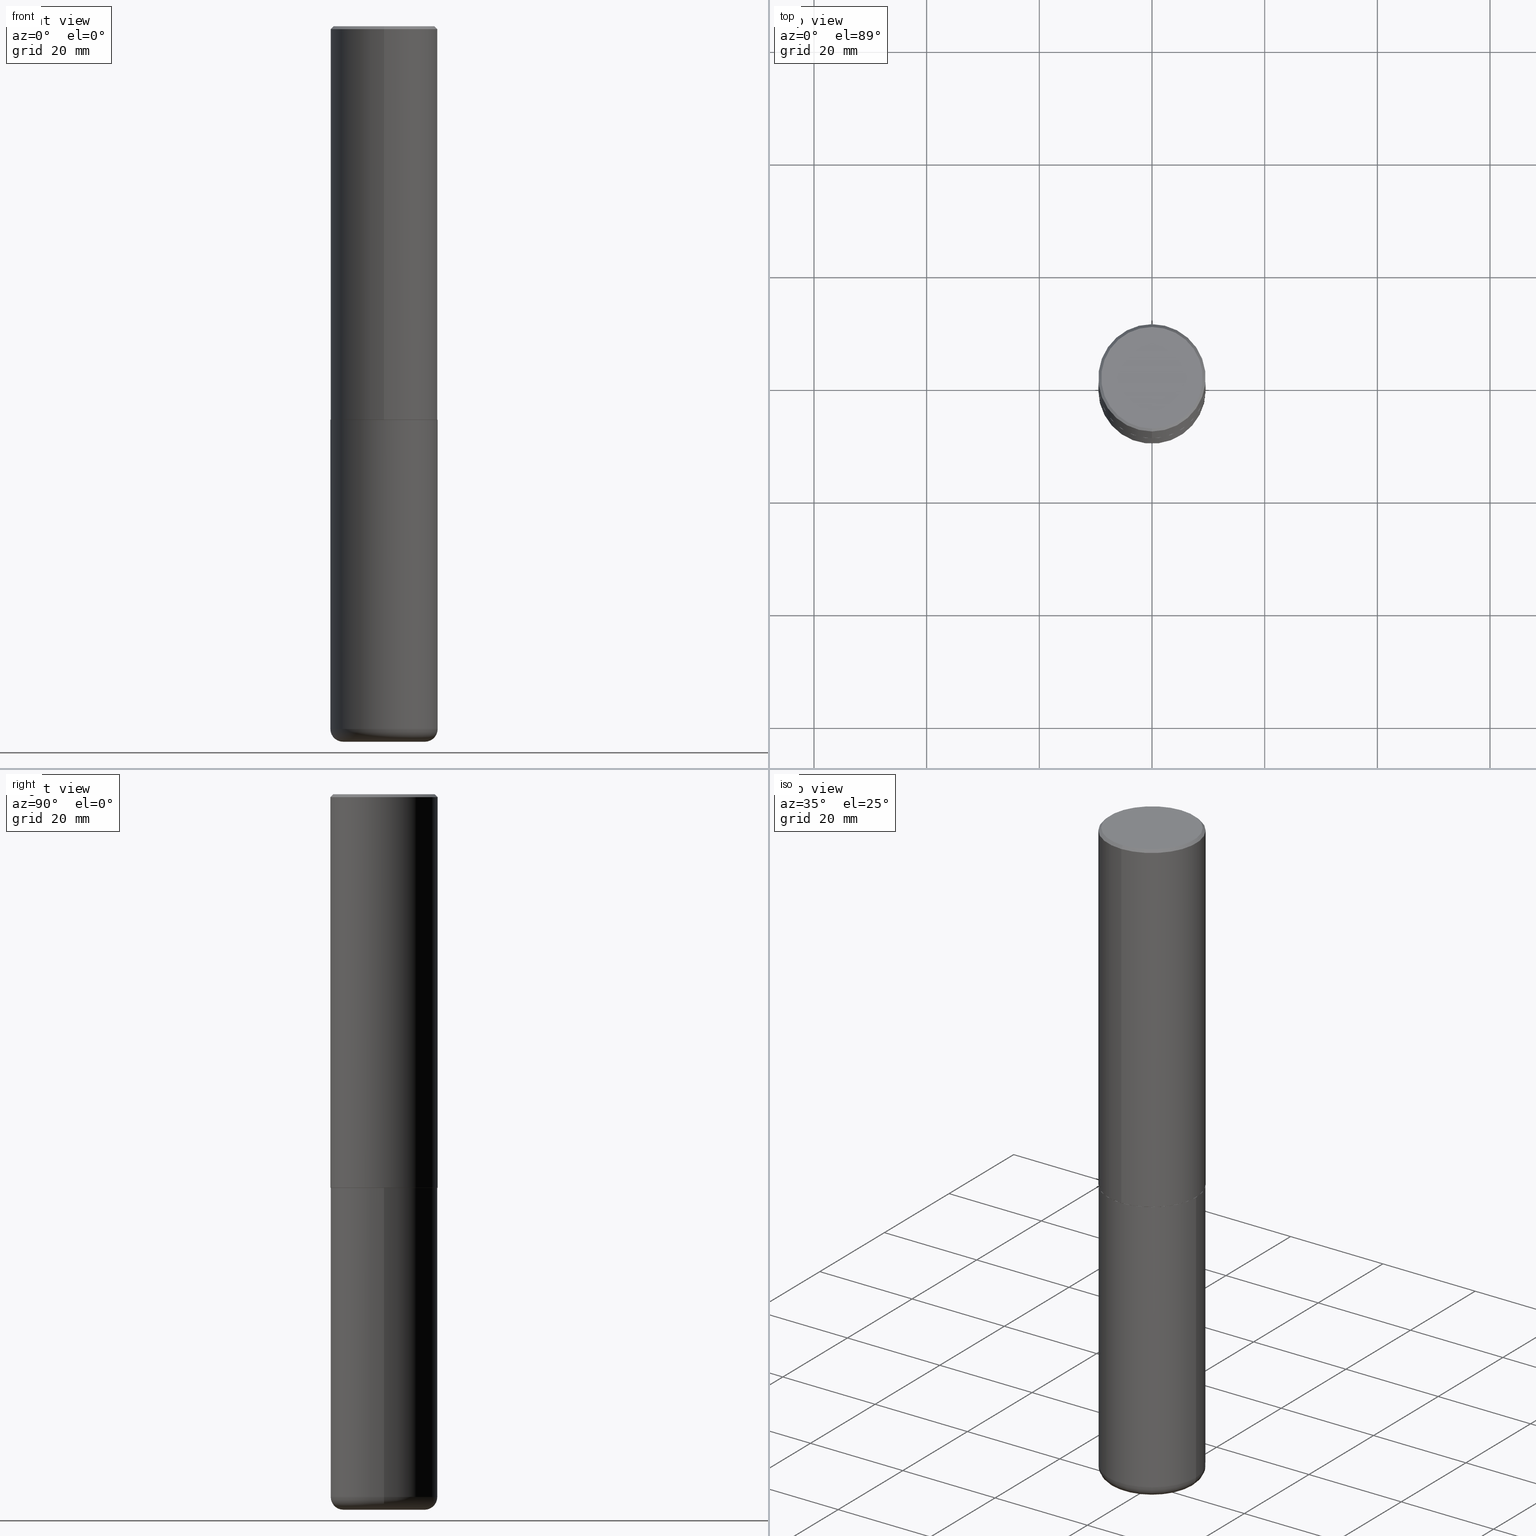
[diagram: canonical four-view strip — front | top / right | iso, engineering-drawing reading convention]
A machine part, canonical four-view strip (front | top / right | iso — engineering-drawing reading convention). The complete STEP part file that produces these views, byte-faithful:
ISO-10303-21;
HEADER;
FILE_DESCRIPTION (( 'STEP AP203' ),
    '1' );
FILE_NAME ('37660.STEP',
    '2024-03-02T07:19:38',
    ( '' ),
    ( '' ),
    'SwSTEP 2.0',
    'SolidWorks 2023',
    '' );
FILE_SCHEMA (( 'CONFIG_CONTROL_DESIGN' ));
ENDSEC;

DATA;
#1 = VERTEX_POINT ( 'NONE', #220 ) ;
#2 = CARTESIAN_POINT ( 'NONE',  ( -2.618611004132351594E-15, -0.3750000000000002220, 1.308998548422625521E-15 ) ) ;
#3 = CC_DESIGN_PERSON_AND_ORGANIZATION_ASSIGNMENT ( #376, #407, ( #402 ) ) ;
#4 = FACE_OUTER_BOUND ( 'NONE', #398, .T. ) ;
#5 = APPLICATION_PROTOCOL_DEFINITION ( 'international standard', 'config_control_design', 1994, #109 ) ;
#6 = ORIENTED_EDGE ( 'NONE', *, *, #190, .T. ) ;
#7 = ADVANCED_FACE ( 'NONE', ( #30 ), #162, .F. ) ;
#8 = EDGE_CURVE ( 'NONE', #271, #403, #415, .T. ) ;
#9 = CARTESIAN_POINT ( 'NONE',  ( 0.000000000000000000, 0.000000000000000000, 0.000000000000000000 ) ) ;
#10 = ORIENTED_EDGE ( 'NONE', *, *, #90, .T. ) ;
#11 = CONICAL_SURFACE ( 'NONE', #198, 0.3750000000000000555, 0.7853981633974465026 ) ;
#12 = SECURITY_CLASSIFICATION ( '', '', #222 ) ;
#13 = DIRECTION ( 'NONE',  ( -6.982962677686265922E-15, -1.000000000000000000, 3.490662795793665557E-15 ) ) ;
#14 = ORIENTED_EDGE ( 'NONE', *, *, #201, .T. ) ;
#15 = ORIENTED_EDGE ( 'NONE', *, *, #394, .T. ) ;
#16 = APPROVAL_DATE_TIME ( #56, #104 ) ;
#17 = VERTEX_POINT ( 'NONE', #281 ) ;
#18 = TOROIDAL_SURFACE ( 'NONE', #256, 0.2850000000000000311, 0.08999999999999989952 ) ;
#19 = AXIS2_PLACEMENT_3D ( 'NONE', #9, #208, #390 ) ;
#20 = ORIENTED_EDGE ( 'NONE', *, *, #327, .F. ) ;
#21 = CALENDAR_DATE ( 2024, 2, 3 ) ;
#22 = CARTESIAN_POINT ( 'NONE',  ( 1.222734403092568523E-28, -1.745740669421572989E-14, -5.000000000000000000 ) ) ;
#23 = APPLICATION_CONTEXT ( 'configuration controlled 3d designs of mechanical parts and assemblies' ) ;
#24 = CC_DESIGN_PERSON_AND_ORGANIZATION_ASSIGNMENT ( #130, #25, ( #183 ) ) ;
#25 = PERSON_AND_ORGANIZATION_ROLE ( 'creator' ) ;
#26 = CARTESIAN_POINT ( 'NONE',  ( 4.892080783483214581E-31, -6.981325591587361238E-17, -0.02000000000000008715 ) ) ;
#27 = AXIS2_PLACEMENT_3D ( 'NONE', #235, #206, #237 ) ;
#28 = AXIS2_PLACEMENT_3D ( 'NONE', #249, #95, #223 ) ;
#29 = CARTESIAN_POINT ( 'NONE',  ( 0.000000000000000000, 0.000000000000000000, 0.000000000000000000 ) ) ;
#30 = FACE_OUTER_BOUND ( 'NONE', #115, .T. ) ;
#31 = ADVANCED_FACE ( 'NONE', ( #278 ), #195, .F. ) ;
#32 = DIRECTION ( 'NONE',  ( -2.445468806185136597E-29, 3.491481338843145583E-15, 1.000000000000000000 ) ) ;
#33 = VERTEX_POINT ( 'NONE', #286 ) ;
#34 = CIRCLE ( 'NONE', #35, 0.3750000000000000555 ) ;
#35 = AXIS2_PLACEMENT_3D ( 'NONE', #135, #377, #129 ) ;
#36 = DIRECTION ( 'NONE',  ( -2.446040391741596045E-29, 3.490662795793665557E-15, 1.000000000000000000 ) ) ;
#37 = APPROVAL_PERSON_ORGANIZATION ( #274, #409, #136 ) ;
#38 = CARTESIAN_POINT ( 'NONE',  ( -2.611628041454596160E-15, -0.3740000000000096581, -2.749999999999998668 ) ) ;
#39 = ORIENTED_EDGE ( 'NONE', *, *, #263, .F. ) ;
#40 = CC_DESIGN_PERSON_AND_ORGANIZATION_ASSIGNMENT ( #63, #67, ( #402 ) ) ;
#41 = FACE_OUTER_BOUND ( 'NONE', #269, .T. ) ;
#42 = CARTESIAN_POINT ( 'NONE',  ( -0.2850000000000000311, -1.495549900595945556E-14, -5.000000000000000000 ) ) ;
#43 = CLOSED_SHELL ( 'NONE', ( #383, #141, #212, #196, #142, #302, #254, #31 ) ) ;
#44 = AXIS2_PLACEMENT_3D ( 'NONE', #29, #318, #375 ) ;
#45 = APPROVAL_PERSON_ORGANIZATION ( #125, #168, #227 ) ;
#46 = PRODUCT_RELATED_PRODUCT_CATEGORY ( 'detail', '', ( #204 ) ) ;
#47 = ORIENTED_EDGE ( 'NONE', *, *, #236, .F. ) ;
#48 =( CONVERSION_BASED_UNIT ( 'INCH', #298 ) LENGTH_UNIT ( ) NAMED_UNIT ( #71 ) );
#49 = ORIENTED_EDGE ( 'NONE', *, *, #310, .T. ) ;
#50 = CARTESIAN_POINT ( 'NONE',  ( -1.141397163745304909E-45, 1.628849886601155835E-31, 4.666305460853910467E-17 ) ) ;
#51 = EDGE_LOOP ( 'NONE', ( #88, #53 ) ) ;
#52 = CIRCLE ( 'NONE', #351, 0.3749999999999999445 ) ;
#53 = ORIENTED_EDGE ( 'NONE', *, *, #172, .F. ) ;
#54 = CARTESIAN_POINT ( 'NONE',  ( 0.2850000000000000311, -1.913331773686043011E-14, -4.910000000000000142 ) ) ;
#55 = EDGE_LOOP ( 'NONE', ( #213, #15, #49, #119 ) ) ;
#56 = DATE_AND_TIME ( #94, #85 ) ;
#57 = CARTESIAN_POINT ( 'NONE',  ( 0.000000000000000000, 0.000000000000000000, 0.000000000000000000 ) ) ;
#58 = CIRCLE ( 'NONE', #330, 0.3750000000000003886 ) ;
#59 = ORGANIZATION ( 'UNSPECIFIED', 'UNSPECIFIED', '' ) ;
#60 = EDGE_CURVE ( 'NONE', #84, #17, #193, .T. ) ;
#61 = DIRECTION ( 'NONE',  ( 6.982962677686265922E-15, 1.000000000000000000, -3.490662795793665557E-15 ) ) ;
#62 = EDGE_CURVE ( 'NONE', #368, #17, #34, .T. ) ;
#63 = PERSON_AND_ORGANIZATION ( #315, #59 ) ;
#64 = DIRECTION ( 'NONE',  ( -2.445468806185136597E-29, 3.491481338843145583E-15, 1.000000000000000000 ) ) ;
#65 = DIRECTION ( 'NONE',  ( -6.982962677686265922E-15, -1.000000000000000000, 3.494488891895536035E-15 ) ) ;
#66 = AXIS2_PLACEMENT_3D ( 'NONE', #405, #412, #65 ) ;
#67 = PERSON_AND_ORGANIZATION_ROLE ( 'creator' ) ;
#68 = CYLINDRICAL_SURFACE ( 'NONE', #416, 0.3750000000000002220 ) ;
#69 = DIRECTION ( 'NONE',  ( 2.438088387897960049E-29, -3.491481338843145188E-15, -1.000000000000000000 ) ) ;
#70 = CARTESIAN_POINT ( 'NONE',  ( 4.892080783483214581E-31, -6.981325591587361238E-17, -0.02000000000000008715 ) ) ;
#71 = DIMENSIONAL_EXPONENTS ( 1.000000000000000000, 0.000000000000000000, 0.000000000000000000, 0.000000000000000000, 0.000000000000000000, 0.000000000000000000, 0.000000000000000000 ) ;
#72 = CIRCLE ( 'NONE', #408, 0.3749999999999999445 ) ;
#73 = DIRECTION ( 'NONE',  ( 6.982962677686265922E-15, 1.000000000000000000, -3.494488891895536035E-15 ) ) ;
#74 = DIRECTION ( 'NONE',  ( 1.000000000000000000, -6.982962677686269077E-15, 4.883557194083113462E-29 ) ) ;
#75 = FACE_OUTER_BOUND ( 'NONE', #51, .T. ) ;
#76 = EDGE_CURVE ( 'NONE', #403, #271, #93, .T. ) ;
#77 = DIRECTION ( 'NONE',  ( -6.982962677686266711E-15, -1.000000000000000000, 2.921762560068730595E-15 ) ) ;
#78 = CIRCLE ( 'NONE', #307, 0.08999999999999992728 ) ;
#79 = ORIENTED_EDGE ( 'NONE', *, *, #291, .T. ) ;
#80 = DIRECTION ( 'NONE',  ( 1.000000000000000000, -6.982962677686273810E-15, 0.000000000000000000 ) ) ;
#81 = ORIENTED_EDGE ( 'NONE', *, *, #291, .F. ) ;
#82 = EDGE_LOOP ( 'NONE', ( #20, #163, #340, #158 ) ) ;
#83 = CARTESIAN_POINT ( 'NONE',  ( 6.726611077289389265E-29, -9.599322688432580971E-15, -2.750000000000000000 ) ) ;
#84 = VERTEX_POINT ( 'NONE', #170 ) ;
#85 = LOCAL_TIME ( 2, 19, 38.00000000000000000, #167 ) ;
#86 = EDGE_CURVE ( 'NONE', #214, #271, #312, .T. ) ;
#87 =( NAMED_UNIT ( * ) PLANE_ANGLE_UNIT ( ) SI_UNIT ( $, .RADIAN. ) );
#88 = ORIENTED_EDGE ( 'NONE', *, *, #90, .F. ) ;
#89 = CARTESIAN_POINT ( 'NONE',  ( 2.664535259100376880E-15, 0.3750000000000002220, -1.308998548422625521E-15 ) ) ;
#90 = EDGE_CURVE ( 'NONE', #186, #218, #147, .T. ) ;
#91 = CALENDAR_DATE ( 2024, 2, 3 ) ;
#92 = ORIENTED_EDGE ( 'NONE', *, *, #337, .F. ) ;
#93 = CIRCLE ( 'NONE', #66, 0.3750000000000000555 ) ;
#94 = CALENDAR_DATE ( 2024, 2, 3 ) ;
#95 = DIRECTION ( 'NONE',  ( -2.446040391741596606E-29, 3.490662795793665557E-15, 1.000000000000000000 ) ) ;
#96 = COORDINATED_UNIVERSAL_TIME_OFFSET ( 5, 0, .BEHIND. ) ;
#97 = ORIENTED_EDGE ( 'NONE', *, *, #263, .T. ) ;
#98 = DIRECTION ( 'NONE',  ( 4.937700262164538576E-15, 0.7071067811865437980, -0.7071067811865512365 ) ) ;
#99 = AXIS2_PLACEMENT_3D ( 'NONE', #22, #197, #228 ) ;
#100 = AXIS2_PLACEMENT_3D ( 'NONE', #83, #399, #77 ) ;
#101 = DIRECTION ( 'NONE',  ( 6.982962677686265922E-15, 1.000000000000000000, -3.494488891895536035E-15 ) ) ;
#102 = PLANE ( 'NONE',  #261 ) ;
#103 = DIRECTION ( 'NONE',  ( -2.445468806185136597E-29, 3.491481338843145583E-15, 1.000000000000000000 ) ) ;
#104 = APPROVAL ( #184, 'UNSPECIFIED' ) ;
#105 = CIRCLE ( 'NONE', #366, 0.2850000000000000311 ) ;
#106 = CARTESIAN_POINT ( 'NONE',  ( 1.222734403092568523E-28, -1.745740669421572989E-14, -5.000000000000000000 ) ) ;
#107 = DIRECTION ( 'NONE',  ( -6.982962677686266711E-15, -1.000000000000000000, 2.921762560068730595E-15 ) ) ;
#108 = EDGE_CURVE ( 'NONE', #123, #214, #319, .T. ) ;
#109 = APPLICATION_CONTEXT ( 'configuration controlled 3d designs of mechanical parts and assemblies' ) ;
#110 = CARTESIAN_POINT ( 'NONE',  ( -0.3749999999999999445, 2.664535259100375303E-15, -1.844600658845589318E-29 ) ) ;
#111 = MANIFOLD_SOLID_BREP ( 'Body-Move/Copy2[2]', #43 ) ;
#112 = CARTESIAN_POINT ( 'NONE',  ( -2.572686749164323547E-15, -0.3750000000000001110, -0.01999999999999877570 ) ) ;
#113 = AXIS2_PLACEMENT_3D ( 'NONE', #138, #253, #61 ) ;
#114 = CONICAL_SURFACE ( 'NONE', #338, 0.3739999999999999991, 0.7853981633977213939 ) ;
#115 = EDGE_LOOP ( 'NONE', ( #411, #159 ) ) ;
#116 = LOCAL_TIME ( 2, 19, 38.00000000000000000, #225 ) ;
#117 = MANIFOLD_SOLID_BREP ( 'Body-Move/Copy2[1]', #273 ) ;
#118 = APPLICATION_PROTOCOL_DEFINITION ( 'international standard', 'config_control_design', 1994, #23 ) ;
#119 = ORIENTED_EDGE ( 'NONE', *, *, #8, .F. ) ;
#120 = DIRECTION ( 'NONE',  ( -4.851104656540954809E-15, -0.7071067811865486830, -0.7071067811865463515 ) ) ;
#121 = ADVANCED_FACE ( 'NONE', ( #131 ), #219, .T. ) ;
#122 = ORIENTED_EDGE ( 'NONE', *, *, #172, .T. ) ;
#123 = VERTEX_POINT ( 'NONE', #285 ) ;
#124 = VECTOR ( 'NONE', #200, 39.37007874015748143 ) ;
#125 = PERSON_AND_ORGANIZATION ( #315, #59 ) ;
#126 = ORIENTED_EDGE ( 'NONE', *, *, #323, .T. ) ;
#127 = EDGE_CURVE ( 'NONE', #241, #271, #137, .T. ) ;
#128 = APPROVAL_DATE_TIME ( #374, #409 ) ;
#129 = DIRECTION ( 'NONE',  ( 1.000000000000000000, -6.982962677686266711E-15, 0.000000000000000000 ) ) ;
#130 = PERSON_AND_ORGANIZATION ( #315, #59 ) ;
#131 = FACE_OUTER_BOUND ( 'NONE', #304, .T. ) ;
#132 = CONICAL_SURFACE ( 'NONE', #185, 0.3750000000000000555, 0.7853981633974465026 ) ;
#133 = APPROVAL_PERSON_ORGANIZATION ( #149, #104, #264 ) ;
#134 = PERSON_AND_ORGANIZATION ( #315, #59 ) ;
#135 = CARTESIAN_POINT ( 'NONE',  ( 6.725039217009124520E-29, -9.601573681818649859E-15, -2.750000000000000000 ) ) ;
#136 = APPROVAL_ROLE ( '' ) ;
#137 = LINE ( 'NONE', #380, #234 ) ;
#138 = CARTESIAN_POINT ( 'NONE',  ( 2.478951750578624209E-15, 0.3549999999999999822, -1.215853765202481601E-15 ) ) ;
#139 = CIRCLE ( 'NONE', #329, 0.3750000000000000555 ) ;
#140 = DIRECTION ( 'NONE',  ( -2.446040391741596606E-29, 3.490662795793665557E-15, 1.000000000000000000 ) ) ;
#141 = ADVANCED_FACE ( 'NONE', ( #352 ), #68, .T. ) ;
#142 = ADVANCED_FACE ( 'NONE', ( #247 ), #283, .T. ) ;
#143 = DIRECTION ( 'NONE',  ( -6.982962677686266711E-15, -1.000000000000000000, 2.921762560068730595E-15 ) ) ;
#144 = PRODUCT_DEFINITION_SHAPE ( 'NONE', 'NONE',  #183 ) ;
#145 = CARTESIAN_POINT ( 'NONE',  ( 1.200725183836902132E-28, -1.714317337371984662E-14, -4.910000000000000142 ) ) ;
#146 = EDGE_LOOP ( 'NONE', ( #92, #239, #297, #364 ) ) ;
#147 = CIRCLE ( 'NONE', #99, 0.2850000000000000311 ) ;
#148 = DIRECTION ( 'NONE',  ( -2.446040391741596606E-29, 3.490662795793665557E-15, 1.000000000000000000 ) ) ;
#149 = PERSON_AND_ORGANIZATION ( #315, #59 ) ;
#150 = ORIENTED_EDGE ( 'NONE', *, *, #310, .F. ) ;
#151 = LINE ( 'NONE', #110, #160 ) ;
#152 = VECTOR ( 'NONE', #251, 39.37007874015748143 ) ;
#153 = ORIENTED_EDGE ( 'NONE', *, *, #108, .F. ) ;
#154 = CC_DESIGN_DATE_AND_TIME_ASSIGNMENT ( #350, #252, ( #183 ) ) ;
#155 = DIRECTION ( 'NONE',  ( -2.445468806185136597E-29, 3.491481338843145583E-15, 1.000000000000000000 ) ) ;
#156 = ORIENTED_EDGE ( 'NONE', *, *, #337, .T. ) ;
#157 = CARTESIAN_POINT ( 'NONE',  ( 1.200725183836902132E-28, -1.714317337371984662E-14, -4.910000000000000142 ) ) ;
#158 = ORIENTED_EDGE ( 'NONE', *, *, #62, .F. ) ;
#159 = ORIENTED_EDGE ( 'NONE', *, *, #62, .T. ) ;
#160 = VECTOR ( 'NONE', #361, 39.37007874015748143 ) ;
#161 = EDGE_CURVE ( 'NONE', #17, #368, #139, .T. ) ;
#162 = PLANE ( 'NONE',  #173 ) ;
#163 = ORIENTED_EDGE ( 'NONE', *, *, #279, .T. ) ;
#164 = CARTESIAN_POINT ( 'NONE',  ( 2.657429831742841742E-15, 0.3739999999999903957, -2.750000000000000888 ) ) ;
#165 = AXIS2_PLACEMENT_3D ( 'NONE', #233, #140, #293 ) ;
#166 = CC_DESIGN_APPROVAL ( #409, ( #402 ) ) ;
#167 = COORDINATED_UNIVERSAL_TIME_OFFSET ( 5, 0, .BEHIND. ) ;
#168 = APPROVAL ( #280, 'UNSPECIFIED' ) ;
#169 = CARTESIAN_POINT ( 'NONE',  ( 6.725039217009124520E-29, -9.601573681818649859E-15, -2.750000000000000000 ) ) ;
#170 = CARTESIAN_POINT ( 'NONE',  ( 0.3749999999999999445, -1.976178437785219664E-14, -4.910000000000000142 ) ) ;
#171 = FACE_OUTER_BOUND ( 'NONE', #146, .T. ) ;
#172 = EDGE_CURVE ( 'NONE', #218, #186, #105, .T. ) ;
#173 = AXIS2_PLACEMENT_3D ( 'NONE', #169, #371, #404 ) ;
#174 = DIRECTION ( 'NONE',  ( -6.982962677686265922E-15, -1.000000000000000000, 3.490662795793665557E-15 ) ) ;
#175 = FACE_OUTER_BOUND ( 'NONE', #396, .T. ) ;
#176 = LINE ( 'NONE', #2, #387 ) ;
#177 = TOROIDAL_SURFACE ( 'NONE', #284, 0.2850000000000000311, 0.08999999999999989952 ) ;
#178 = CARTESIAN_POINT ( 'NONE',  ( 4.892080783483214581E-31, -6.981325591587361238E-17, -0.02000000000000008715 ) ) ;
#179 = PERSON_AND_ORGANIZATION ( #315, #59 ) ;
#180 = VERTEX_POINT ( 'NONE', #384 ) ;
#181 = LINE ( 'NONE', #112, #362 ) ;
#182 = ORIENTED_EDGE ( 'NONE', *, *, #8, .T. ) ;
#183 = PRODUCT_DEFINITION ( 'UNKNOWN', '', #402, #287 ) ;
#184 = APPROVAL_STATUS ( 'not_yet_approved' ) ;
#185 = AXIS2_PLACEMENT_3D ( 'NONE', #178, #357, #101 ) ;
#186 = VERTEX_POINT ( 'NONE', #355 ) ;
#187 = LOCAL_TIME ( 2, 19, 38.00000000000000000, #311 ) ;
#188 = ORIENTED_EDGE ( 'NONE', *, *, #60, .F. ) ;
#189 = CARTESIAN_POINT ( 'NONE',  ( 6.724165036897648492E-29, -9.595832025636787455E-15, -2.749000000000000110 ) ) ;
#190 = EDGE_CURVE ( 'NONE', #1, #123, #250, .T. ) ;
#191 = ORIENTED_EDGE ( 'NONE', *, *, #248, .T. ) ;
#192 = DIRECTION ( 'NONE',  ( -2.446040391741596606E-29, 3.490662795793665557E-15, 1.000000000000000000 ) ) ;
#193 = LINE ( 'NONE', #199, #392 ) ;
#194 = CALENDAR_DATE ( 2024, 2, 3 ) ;
#195 = PLANE ( 'NONE',  #113 ) ;
#196 = ADVANCED_FACE ( 'NONE', ( #41 ), #132, .T. ) ;
#197 = DIRECTION ( 'NONE',  ( -2.445468806185136597E-29, 3.491481338843145583E-15, 1.000000000000000000 ) ) ;
#198 = AXIS2_PLACEMENT_3D ( 'NONE', #70, #326, #73 ) ;
#199 = CARTESIAN_POINT ( 'NONE',  ( 0.3749999999999999445, -2.618611004132349622E-15, 1.828566290923475642E-29 ) ) ;
#200 = DIRECTION ( 'NONE',  ( -4.937700262165896205E-15, -0.7071067811867381980, 0.7071067811863568364 ) ) ;
#201 = EDGE_CURVE ( 'NONE', #218, #301, #300, .T. ) ;
#202 = DIRECTION ( 'NONE',  ( -6.982962677686265922E-15, -1.000000000000000000, 2.913971193241877611E-15 ) ) ;
#203 = DIRECTION ( 'NONE',  ( -2.446040391741596606E-29, 3.490662795793665557E-15, 1.000000000000000000 ) ) ;
#204 = PRODUCT ( '37660', '37660', '', ( #395 ) ) ;
#205 = LINE ( 'NONE', #38, #124 ) ;
#206 = DIRECTION ( 'NONE',  ( 7.105427357601001859E-15, 1.000000000000000000, -3.491481338843145583E-15 ) ) ;
#207 = AXIS2_PLACEMENT_3D ( 'NONE', #50, #240, #13 ) ;
#208 = DIRECTION ( 'NONE',  ( -2.445468806185136597E-29, 3.491481338843145583E-15, 1.000000000000000000 ) ) ;
#209 = EDGE_LOOP ( 'NONE', ( #79, #156 ) ) ;
#210 = CARTESIAN_POINT ( 'NONE',  ( -0.3750000000000000555, -1.070783826866887333E-14, -2.750000000000000000 ) ) ;
#211 = ADVANCED_FACE ( 'NONE', ( #75 ), #102, .T. ) ;
#212 = ADVANCED_FACE ( 'NONE', ( #171 ), #11, .T. ) ;
#213 = ORIENTED_EDGE ( 'NONE', *, *, #86, .F. ) ;
#214 = VERTEX_POINT ( 'NONE', #292 ) ;
#215 = DIRECTION ( 'NONE',  ( 1.000000000000000000, 0.000000000000000000, 0.000000000000000000 ) ) ;
#216 = ORIENTED_EDGE ( 'NONE', *, *, #394, .F. ) ;
#217 = CARTESIAN_POINT ( 'NONE',  ( 0.000000000000000000, 0.000000000000000000, 0.000000000000000000 ) ) ;
#218 = VERTEX_POINT ( 'NONE', #42 ) ;
#219 = CYLINDRICAL_SURFACE ( 'NONE', #44, 0.3749999999999999445 ) ;
#220 = CARTESIAN_POINT ( 'NONE',  ( -2.611628041454596160E-15, -0.3740000000000096581, -2.749999999999998668 ) ) ;
#221 = AXIS2_PLACEMENT_3D ( 'NONE', #322, #36, #174 ) ;
#222 = SECURITY_CLASSIFICATION_LEVEL ( 'unclassified' ) ;
#223 = DIRECTION ( 'NONE',  ( -6.982962677686266711E-15, -1.000000000000000000, 3.490662795793665951E-15 ) ) ;
#224 = CC_DESIGN_PERSON_AND_ORGANIZATION_ASSIGNMENT ( #179, #296, ( #204 ) ) ;
#225 = COORDINATED_UNIVERSAL_TIME_OFFSET ( 5, 0, .BEHIND. ) ;
#226 = DIRECTION ( 'NONE',  ( -2.445468806185136877E-29, 3.491481338843145188E-15, 1.000000000000000000 ) ) ;
#227 = APPROVAL_ROLE ( '' ) ;
#228 = DIRECTION ( 'NONE',  ( 1.000000000000000000, -6.982962677686266711E-15, 0.000000000000000000 ) ) ;
#229 = CIRCLE ( 'NONE', #165, 0.3549999999999999822 ) ;
#230 =( GEOMETRIC_REPRESENTATION_CONTEXT ( 3 ) GLOBAL_UNCERTAINTY_ASSIGNED_CONTEXT ( ( #272 ) ) GLOBAL_UNIT_ASSIGNED_CONTEXT ( ( #48, #87, #339 ) ) REPRESENTATION_CONTEXT ( 'NONE', 'WORKASPACE' ) );
#231 = DIRECTION ( 'NONE',  ( -2.446040391741596606E-29, 3.490662795793665557E-15, 1.000000000000000000 ) ) ;
#232 = CARTESIAN_POINT ( 'NONE',  ( 1.222734403092568523E-28, -1.745740669421572989E-14, -5.000000000000000000 ) ) ;
#233 = CARTESIAN_POINT ( 'NONE',  ( -1.141397163745304909E-45, 1.628849886601155835E-31, 4.666305460853910467E-17 ) ) ;
#234 = VECTOR ( 'NONE', #98, 39.37007874015748143 ) ;
#235 = CARTESIAN_POINT ( 'NONE',  ( -0.2850000000000000311, -1.511812657680356008E-14, -4.910000000000000142 ) ) ;
#236 = EDGE_CURVE ( 'NONE', #180, #214, #393, .T. ) ;
#237 = DIRECTION ( 'NONE',  ( -1.000000000000000000, 7.105427357600996337E-15, 0.000000000000000000 ) ) ;
#238 = FACE_OUTER_BOUND ( 'NONE', #267, .T. ) ;
#239 = ORIENTED_EDGE ( 'NONE', *, *, #369, .T. ) ;
#240 = DIRECTION ( 'NONE',  ( -2.446040391741596606E-29, 3.490662795793665557E-15, 1.000000000000000000 ) ) ;
#241 = VERTEX_POINT ( 'NONE', #325 ) ;
#242 = ORIENTED_EDGE ( 'NONE', *, *, #356, .T. ) ;
#243 = CC_DESIGN_APPROVAL ( #104, ( #183 ) ) ;
#244 = ORIENTED_EDGE ( 'NONE', *, *, #86, .T. ) ;
#245 = DATE_AND_TIME ( #21, #116 ) ;
#246 = ORIENTED_EDGE ( 'NONE', *, *, #161, .F. ) ;
#247 = FACE_OUTER_BOUND ( 'NONE', #55, .T. ) ;
#248 = EDGE_CURVE ( 'NONE', #1, #180, #205, .T. ) ;
#249 = CARTESIAN_POINT ( 'NONE',  ( 0.000000000000000000, 0.000000000000000000, 0.000000000000000000 ) ) ;
#250 = CIRCLE ( 'NONE', #401, 0.3739999999999999991 ) ;
#251 = DIRECTION ( 'NONE',  ( 5.024295867789434219E-15, 0.7071067811867430830, 0.7071067811863519514 ) ) ;
#252 = DATE_TIME_ROLE ( 'creation_date' ) ;
#253 = DIRECTION ( 'NONE',  ( 2.446040391741596045E-29, -3.490662795793665557E-15, -1.000000000000000000 ) ) ;
#254 = ADVANCED_FACE ( 'NONE', ( #4 ), #255, .F. ) ;
#255 = PLANE ( 'NONE',  #221 ) ;
#256 = AXIS2_PLACEMENT_3D ( 'NONE', #157, #155, #266 ) ;
#257 = DIRECTION ( 'NONE',  ( 1.000000000000000000, -6.982962677686269077E-15, 0.000000000000000000 ) ) ;
#258 = FACE_OUTER_BOUND ( 'NONE', #342, .T. ) ;
#259 = CARTESIAN_POINT ( 'NONE',  ( 6.724165036897648492E-29, -9.595832025636787455E-15, -2.749000000000000110 ) ) ;
#260 = CIRCLE ( 'NONE', #275, 0.3739999999999999991 ) ;
#261 = AXIS2_PLACEMENT_3D ( 'NONE', #106, #69, #295 ) ;
#262 = DIRECTION ( 'NONE',  ( -2.446040391741596606E-29, 3.490662795793665557E-15, 1.000000000000000000 ) ) ;
#263 = EDGE_CURVE ( 'NONE', #84, #301, #72, .T. ) ;
#264 = APPROVAL_ROLE ( '' ) ;
#265 = ORIENTED_EDGE ( 'NONE', *, *, #127, .T. ) ;
#266 = DIRECTION ( 'NONE',  ( 1.000000000000000000, -6.982962677686269077E-15, 4.883557194083113462E-29 ) ) ;
#267 = EDGE_LOOP ( 'NONE', ( #6, #365, #47, #306 ) ) ;
#268 = FACE_OUTER_BOUND ( 'NONE', #332, .T. ) ;
#269 = EDGE_LOOP ( 'NONE', ( #373, #81, #265, #182 ) ) ;
#270 = DIRECTION ( 'NONE',  ( -6.982962677686266711E-15, -1.000000000000000000, 3.491481338843145583E-15 ) ) ;
#271 = VERTEX_POINT ( 'NONE', #385 ) ;
#272 = UNCERTAINTY_MEASURE_WITH_UNIT (LENGTH_MEASURE( 1.000000000000000082E-05 ), #48, 'distance_accuracy_value', 'NONE');
#273 = CLOSED_SHELL ( 'NONE', ( #121, #308, #7, #414, #354, #211 ) ) ;
#274 = PERSON_AND_ORGANIZATION ( #315, #59 ) ;
#275 = AXIS2_PLACEMENT_3D ( 'NONE', #388, #262, #107 ) ;
#276 = ORIENTED_EDGE ( 'NONE', *, *, #190, .F. ) ;
#277 = COORDINATED_UNIVERSAL_TIME_OFFSET ( 5, 0, .BEHIND. ) ;
#278 = FACE_OUTER_BOUND ( 'NONE', #209, .T. ) ;
#279 = EDGE_CURVE ( 'NONE', #301, #84, #52, .T. ) ;
#280 = APPROVAL_STATUS ( 'not_yet_approved' ) ;
#281 = CARTESIAN_POINT ( 'NONE',  ( 0.3750000000000000555, -1.222018468595100145E-14, -2.750000000000000000 ) ) ;
#282 = DATE_TIME_ROLE ( 'classification_date' ) ;
#283 = CYLINDRICAL_SURFACE ( 'NONE', #28, 0.3750000000000002220 ) ;
#284 = AXIS2_PLACEMENT_3D ( 'NONE', #145, #386, #74 ) ;
#285 = CARTESIAN_POINT ( 'NONE',  ( 2.660982545421643429E-15, 0.3739999999999903957, -2.750000000000000888 ) ) ;
#286 = CARTESIAN_POINT ( 'NONE',  ( -2.504081769186608216E-15, -0.3549999999999999822, 1.285848347115290366E-15 ) ) ;
#287 = DESIGN_CONTEXT ( 'detailed design', #23, 'design' ) ;
#288 = DIRECTION ( 'NONE',  ( 1.000000000000000000, -6.982962677686269077E-15, 0.000000000000000000 ) ) ;
#289 = LOCAL_TIME ( 2, 19, 38.00000000000000000, #277 ) ;
#290 = CARTESIAN_POINT ( 'NONE',  ( -0.3749999999999999445, -1.447863811461947092E-14, -4.910000000000000142 ) ) ;
#291 = EDGE_CURVE ( 'NONE', #241, #33, #229, .T. ) ;
#292 = CARTESIAN_POINT ( 'NONE',  ( 2.664535259100411196E-15, 0.3749999999999907296, -2.749000000000000998 ) ) ;
#293 = DIRECTION ( 'NONE',  ( -6.982962677686265922E-15, -1.000000000000000000, 3.490662795793665557E-15 ) ) ;
#294 = AXIS2_PLACEMENT_3D ( 'NONE', #259, #203, #202 ) ;
#295 = DIRECTION ( 'NONE',  ( -1.000000000000000000, 6.982962677686265922E-15, -4.876176775795935793E-29 ) ) ;
#296 = PERSON_AND_ORGANIZATION_ROLE ( 'design_owner' ) ;
#297 = ORIENTED_EDGE ( 'NONE', *, *, #76, .T. ) ;
#298 = LENGTH_MEASURE_WITH_UNIT ( LENGTH_MEASURE( 0.02539999999999999897 ), #305 );
#299 = ORIENTED_EDGE ( 'NONE', *, *, #356, .F. ) ;
#300 = CIRCLE ( 'NONE', #27, 0.08999999999999992728 ) ;
#301 = VERTEX_POINT ( 'NONE', #290 ) ;
#302 = ADVANCED_FACE ( 'NONE', ( #175 ), #114, .T. ) ;
#303 = DIRECTION ( 'NONE',  ( -6.982962677686265922E-15, -1.000000000000000000, 2.913971193241877611E-15 ) ) ;
#304 = EDGE_LOOP ( 'NONE', ( #97, #400, #246, #188 ) ) ;
#305 =( LENGTH_UNIT ( ) NAMED_UNIT ( * ) SI_UNIT ( $, .METRE. ) );
#306 = ORIENTED_EDGE ( 'NONE', *, *, #248, .F. ) ;
#307 = AXIS2_PLACEMENT_3D ( 'NONE', #54, #270, #80 ) ;
#308 = ADVANCED_FACE ( 'NONE', ( #258 ), #177, .T. ) ;
#309 = DIRECTION ( 'NONE',  ( -6.982962677686266711E-15, -1.000000000000000000, 3.490662795793665951E-15 ) ) ;
#310 = EDGE_CURVE ( 'NONE', #180, #403, #176, .T. ) ;
#311 = COORDINATED_UNIVERSAL_TIME_OFFSET ( 5, 0, .BEHIND. ) ;
#312 = LINE ( 'NONE', #89, #317 ) ;
#313 = DATE_AND_TIME ( #194, #358 ) ;
#314 = DIRECTION ( 'NONE',  ( 1.000000000000000000, -6.982962677686266711E-15, 0.000000000000000000 ) ) ;
#315 = PERSON ( 'UNSPECIFIED', 'UNSPECIFIED', 'UNSPECIFIED', ('UNSPECIFIED'), ('UNSPECIFIED'), ('UNSPECIFIED') ) ;
#316 = CALENDAR_DATE ( 2024, 2, 3 ) ;
#317 = VECTOR ( 'NONE', #343, 39.37007874015748143 ) ;
#318 = DIRECTION ( 'NONE',  ( -2.445468806185136597E-29, 3.491481338843145583E-15, 1.000000000000000000 ) ) ;
#319 = LINE ( 'NONE', #164, #152 ) ;
#320 = CARTESIAN_POINT ( 'NONE',  ( 1.200725183836902132E-28, -1.714317337371984662E-14, -4.910000000000000142 ) ) ;
#321 = ORIENTED_EDGE ( 'NONE', *, *, #279, .F. ) ;
#322 = CARTESIAN_POINT ( 'NONE',  ( 6.726611077289389265E-29, -9.599322688432580971E-15, -2.750000000000000000 ) ) ;
#323 = EDGE_CURVE ( 'NONE', #123, #1, #260, .T. ) ;
#324 = AXIS2_PLACEMENT_3D ( 'NONE', #217, #341, #215 ) ;
#325 = CARTESIAN_POINT ( 'NONE',  ( 2.548781377355487113E-15, 0.3549999999999999822, -1.192522237898212341E-15 ) ) ;
#326 = DIRECTION ( 'NONE',  ( 2.446040391741596606E-29, -3.490662795793665557E-15, -1.000000000000000000 ) ) ;
#327 = EDGE_CURVE ( 'NONE', #301, #368, #151, .T. ) ;
#328 = CARTESIAN_POINT ( 'NONE',  ( 6.726611077289389265E-29, -9.599322688432580971E-15, -2.750000000000000000 ) ) ;
#329 = AXIS2_PLACEMENT_3D ( 'NONE', #347, #64, #314 ) ;
#330 = AXIS2_PLACEMENT_3D ( 'NONE', #189, #397, #303 ) ;
#331 = FACE_OUTER_BOUND ( 'NONE', #82, .T. ) ;
#332 = EDGE_LOOP ( 'NONE', ( #345, #122, #242, #321 ) ) ;
#333 = CYLINDRICAL_SURFACE ( 'NONE', #19, 0.3749999999999999445 ) ;
#334 = EDGE_LOOP ( 'NONE', ( #391, #244, #336, #150 ) ) ;
#335 = ADVANCED_BREP_SHAPE_REPRESENTATION ( '37660', ( #117, #111, #324 ), #230 ) ;
#336 = ORIENTED_EDGE ( 'NONE', *, *, #76, .F. ) ;
#337 = EDGE_CURVE ( 'NONE', #33, #241, #381, .T. ) ;
#338 = AXIS2_PLACEMENT_3D ( 'NONE', #359, #418, #143 ) ;
#339 =( NAMED_UNIT ( * ) SI_UNIT ( $, .STERADIAN. ) SOLID_ANGLE_UNIT ( ) );
#340 = ORIENTED_EDGE ( 'NONE', *, *, #60, .T. ) ;
#341 = DIRECTION ( 'NONE',  ( 0.000000000000000000, 0.000000000000000000, 1.000000000000000000 ) ) ;
#342 = EDGE_LOOP ( 'NONE', ( #10, #14, #39, #299 ) ) ;
#343 = DIRECTION ( 'NONE',  ( -2.446040391741596606E-29, 3.490662795793665557E-15, 1.000000000000000000 ) ) ;
#344 = CONICAL_SURFACE ( 'NONE', #100, 0.3739999999999999991, 0.7853981633977213939 ) ;
#345 = ORIENTED_EDGE ( 'NONE', *, *, #201, .F. ) ;
#346 = PERSON_AND_ORGANIZATION_ROLE ( 'classification_officer' ) ;
#347 = CARTESIAN_POINT ( 'NONE',  ( 6.725039217009124520E-29, -9.601573681818649859E-15, -2.750000000000000000 ) ) ;
#348 = DIRECTION ( 'NONE',  ( -2.446040391741596606E-29, 3.490662795793665557E-15, 1.000000000000000000 ) ) ;
#349 = CC_DESIGN_PERSON_AND_ORGANIZATION_ASSIGNMENT ( #134, #346, ( #12 ) ) ;
#350 = DATE_AND_TIME ( #316, #187 ) ;
#351 = AXIS2_PLACEMENT_3D ( 'NONE', #417, #103, #257 ) ;
#352 = FACE_OUTER_BOUND ( 'NONE', #334, .T. ) ;
#353 = DIRECTION ( 'NONE',  ( 1.000000000000000000, -6.982962677686266711E-15, 0.000000000000000000 ) ) ;
#354 = ADVANCED_FACE ( 'NONE', ( #268 ), #18, .T. ) ;
#355 = CARTESIAN_POINT ( 'NONE',  ( 0.2850000000000000311, -1.944755105735631653E-14, -5.000000000000000000 ) ) ;
#356 = EDGE_CURVE ( 'NONE', #186, #84, #78, .T. ) ;
#357 = DIRECTION ( 'NONE',  ( 2.446040391741596606E-29, -3.490662795793665557E-15, -1.000000000000000000 ) ) ;
#358 = LOCAL_TIME ( 2, 19, 38.00000000000000000, #96 ) ;
#359 = CARTESIAN_POINT ( 'NONE',  ( 6.726611077289389265E-29, -9.599322688432580971E-15, -2.750000000000000000 ) ) ;
#360 = DIRECTION ( 'NONE',  ( -2.445468806185136597E-29, 3.491481338843145583E-15, 1.000000000000000000 ) ) ;
#361 = DIRECTION ( 'NONE',  ( -2.445468806185136877E-29, 3.491481338843145188E-15, 1.000000000000000000 ) ) ;
#362 = VECTOR ( 'NONE', #120, 39.37007874015748143 ) ;
#363 = ORIENTED_EDGE ( 'NONE', *, *, #323, .F. ) ;
#364 = ORIENTED_EDGE ( 'NONE', *, *, #127, .F. ) ;
#365 = ORIENTED_EDGE ( 'NONE', *, *, #108, .T. ) ;
#366 = AXIS2_PLACEMENT_3D ( 'NONE', #232, #360, #353 ) ;
#367 = CC_DESIGN_SECURITY_CLASSIFICATION ( #12, ( #402 ) ) ;
#368 = VERTEX_POINT ( 'NONE', #210 ) ;
#369 = EDGE_CURVE ( 'NONE', #33, #403, #181, .T. ) ;
#370 = APPROVAL_DATE_TIME ( #245, #168 ) ;
#371 = DIRECTION ( 'NONE',  ( 2.438088387897960049E-29, -3.491481338843145188E-15, -1.000000000000000000 ) ) ;
#372 = APPROVAL_STATUS ( 'not_yet_approved' ) ;
#373 = ORIENTED_EDGE ( 'NONE', *, *, #369, .F. ) ;
#374 = DATE_AND_TIME ( #91, #289 ) ;
#375 = DIRECTION ( 'NONE',  ( 1.000000000000000000, -6.982962677686266711E-15, 4.876176775795935793E-29 ) ) ;
#376 = PERSON_AND_ORGANIZATION ( #315, #59 ) ;
#377 = DIRECTION ( 'NONE',  ( -2.445468806185136597E-29, 3.491481338843145583E-15, 1.000000000000000000 ) ) ;
#378 = CC_DESIGN_DATE_AND_TIME_ASSIGNMENT ( #313, #282, ( #12 ) ) ;
#379 = SHAPE_DEFINITION_REPRESENTATION ( #144, #335 ) ;
#380 = CARTESIAN_POINT ( 'NONE',  ( 2.618611004132350411E-15, 0.3749999999999999445, -0.02000000000000139513 ) ) ;
#381 = CIRCLE ( 'NONE', #207, 0.3549999999999999822 ) ;
#382 = DIRECTION ( 'NONE',  ( -6.982962677686266711E-15, -1.000000000000000000, 2.921762560068730595E-15 ) ) ;
#383 = ADVANCED_FACE ( 'NONE', ( #238 ), #344, .T. ) ;
#384 = CARTESIAN_POINT ( 'NONE',  ( -2.618611004132284935E-15, -0.3750000000000099920, -2.748999999999999222 ) ) ;
#385 = CARTESIAN_POINT ( 'NONE',  ( 2.618611004132350411E-15, 0.3749999999999999445, -0.02000000000000139513 ) ) ;
#386 = DIRECTION ( 'NONE',  ( -2.445468806185136597E-29, 3.491481338843145583E-15, 1.000000000000000000 ) ) ;
#387 = VECTOR ( 'NONE', #148, 39.37007874015748143 ) ;
#388 = CARTESIAN_POINT ( 'NONE',  ( 6.726611077289389265E-29, -9.599322688432580971E-15, -2.750000000000000000 ) ) ;
#389 = CARTESIAN_POINT ( 'NONE',  ( -2.572686749164323547E-15, -0.3750000000000001110, -0.01999999999999877570 ) ) ;
#390 = DIRECTION ( 'NONE',  ( 1.000000000000000000, -6.982962677686266711E-15, 4.876176775795935793E-29 ) ) ;
#391 = ORIENTED_EDGE ( 'NONE', *, *, #236, .T. ) ;
#392 = VECTOR ( 'NONE', #226, 39.37007874015748143 ) ;
#393 = CIRCLE ( 'NONE', #294, 0.3750000000000003886 ) ;
#394 = EDGE_CURVE ( 'NONE', #214, #180, #58, .T. ) ;
#395 = MECHANICAL_CONTEXT ( 'NONE', #109, 'mechanical' ) ;
#396 = EDGE_LOOP ( 'NONE', ( #153, #126, #191, #216 ) ) ;
#397 = DIRECTION ( 'NONE',  ( -2.446040391741596606E-29, 3.490662795793665557E-15, 1.000000000000000000 ) ) ;
#398 = EDGE_LOOP ( 'NONE', ( #276, #363 ) ) ;
#399 = DIRECTION ( 'NONE',  ( -2.446040391741596606E-29, 3.490662795793665557E-15, 1.000000000000000000 ) ) ;
#400 = ORIENTED_EDGE ( 'NONE', *, *, #327, .T. ) ;
#401 = AXIS2_PLACEMENT_3D ( 'NONE', #328, #231, #382 ) ;
#402 = PRODUCT_DEFINITION_FORMATION_WITH_SPECIFIED_SOURCE ( 'ANY', '', #204, .NOT_KNOWN. ) ;
#403 = VERTEX_POINT ( 'NONE', #389 ) ;
#404 = DIRECTION ( 'NONE',  ( -1.000000000000000000, 6.982962677686265922E-15, -4.876176775795935793E-29 ) ) ;
#405 = CARTESIAN_POINT ( 'NONE',  ( 4.892080783483214581E-31, -6.981325591587361238E-17, -0.02000000000000008715 ) ) ;
#406 = AXIS2_PLACEMENT_3D ( 'NONE', #26, #348, #413 ) ;
#407 = PERSON_AND_ORGANIZATION_ROLE ( 'design_supplier' ) ;
#408 = AXIS2_PLACEMENT_3D ( 'NONE', #320, #32, #288 ) ;
#409 = APPROVAL ( #372, 'UNSPECIFIED' ) ;
#410 = CC_DESIGN_APPROVAL ( #168, ( #12 ) ) ;
#411 = ORIENTED_EDGE ( 'NONE', *, *, #161, .T. ) ;
#412 = DIRECTION ( 'NONE',  ( -2.446040391741596606E-29, 3.490662795793665557E-15, 1.000000000000000000 ) ) ;
#413 = DIRECTION ( 'NONE',  ( -6.982962677686265922E-15, -1.000000000000000000, 3.494488891895536035E-15 ) ) ;
#414 = ADVANCED_FACE ( 'NONE', ( #331 ), #333, .T. ) ;
#415 = CIRCLE ( 'NONE', #406, 0.3750000000000000555 ) ;
#416 = AXIS2_PLACEMENT_3D ( 'NONE', #57, #192, #309 ) ;
#417 = CARTESIAN_POINT ( 'NONE',  ( 1.200725183836902132E-28, -1.714317337371984662E-14, -4.910000000000000142 ) ) ;
#418 = DIRECTION ( 'NONE',  ( -2.446040391741596606E-29, 3.490662795793665557E-15, 1.000000000000000000 ) ) ;
ENDSEC;
END-ISO-10303-21;
